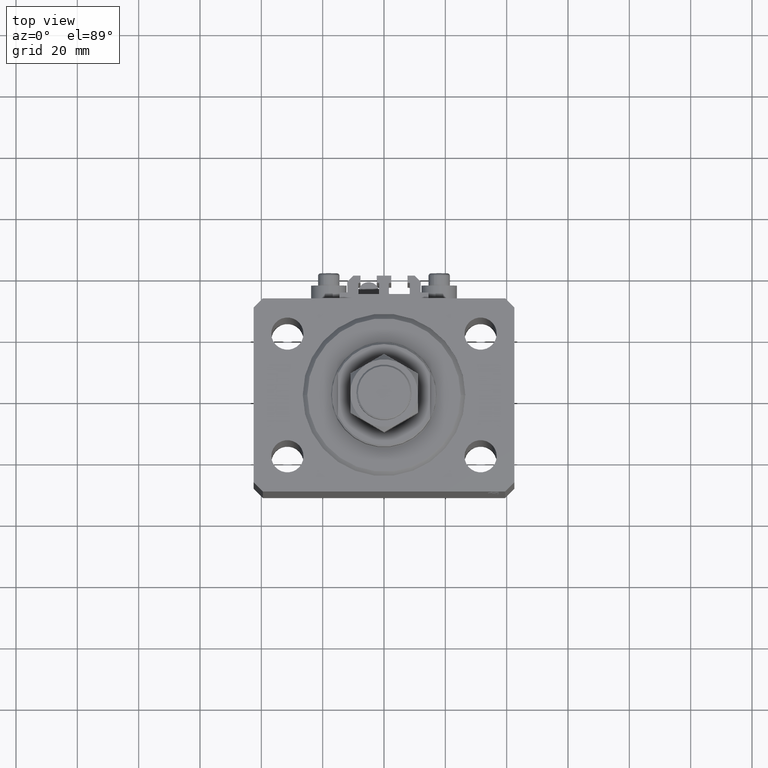
[diagram: clean part render]
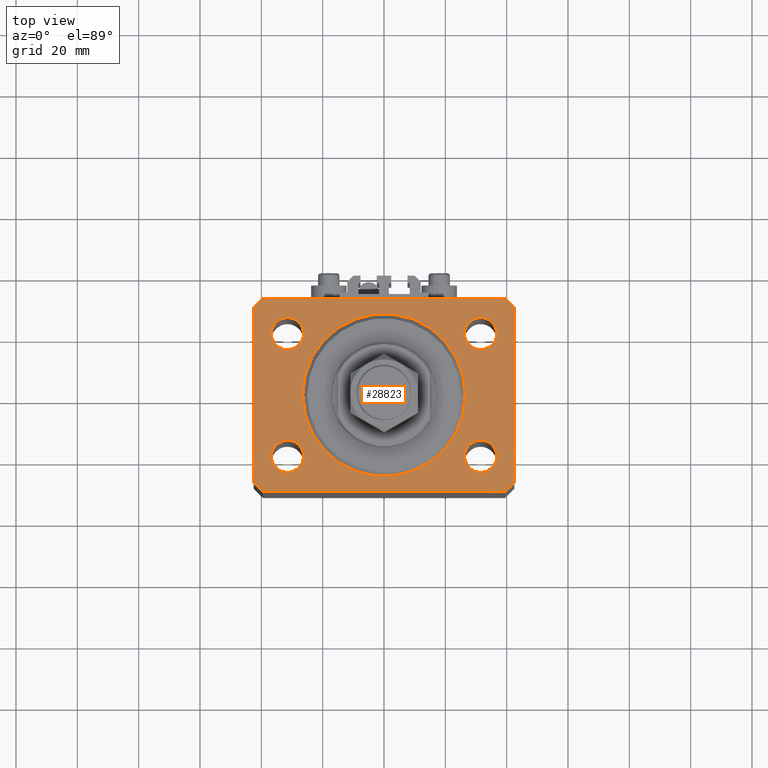
[diagram: same view with one face highlighted and labeled with its STEP entity id]
A machine part, top view. The second image highlights one B-rep face of the part: STEP entity #28823.
In plain terms, the highlighted planar face has unit normal (0, 0, 1).
Its self-contained STEP definition (entity closure, byte-faithful):
#25 = CARTESIAN_POINT ( 'NONE',  ( 31.50000000000000000, 19.99999999999999289, 0.000000000000000000 ) ) ;
#960 = CARTESIAN_POINT ( 'NONE',  ( -39.50000000000000711, -31.50000000000000000, 0.000000000000000000 ) ) ;
#987 = ORIENTED_EDGE ( 'NONE', *, *, #46165, .T. ) ;
#1067 = CIRCLE ( 'NONE', #46896, 5.250000000000000888 ) ;
#1368 = DIRECTION ( 'NONE',  ( -0.7071067811865471286, -0.7071067811865479058, 0.000000000000000000 ) ) ;
#1513 = CARTESIAN_POINT ( 'NONE',  ( 31.49999999999999289, -20.00000000000000355, 0.000000000000000000 ) ) ;
#1708 = DIRECTION ( 'NONE',  ( 1.000000000000000000, 0.000000000000000000, 0.000000000000000000 ) ) ;
#2351 = ORIENTED_EDGE ( 'NONE', *, *, #35962, .F. ) ;
#2626 = CARTESIAN_POINT ( 'NONE',  ( 0.000000000000000000, 0.000000000000000000, 0.000000000000000000 ) ) ;
#2925 = VERTEX_POINT ( 'NONE', #43152 ) ;
#3410 = EDGE_LOOP ( 'NONE', ( #47002, #3598 ) ) ;
#3598 = ORIENTED_EDGE ( 'NONE', *, *, #18454, .F. ) ;
#3734 = EDGE_CURVE ( 'NONE', #7246, #22058, #35396, .T. ) ;
#4209 = CARTESIAN_POINT ( 'NONE',  ( 36.75000000000000000, 19.99999999999999289, 0.000000000000000000 ) ) ;
#4217 = AXIS2_PLACEMENT_3D ( 'NONE', #37185, #18274, #40977 ) ;
#4802 = DIRECTION ( 'NONE',  ( 1.000000000000000000, 0.000000000000000000, 0.000000000000000000 ) ) ;
#5220 = DIRECTION ( 'NONE',  ( 1.000000000000000000, 0.000000000000000000, 0.000000000000000000 ) ) ;
#5742 = CARTESIAN_POINT ( 'NONE',  ( -26.25000000000000000, 19.99999999999999645, 0.000000000000000000 ) ) ;
#6212 = LINE ( 'NONE', #49489, #34469 ) ;
#6227 = CARTESIAN_POINT ( 'NONE',  ( 42.50000000000051870, 28.49999999999995381, 0.000000000000000000 ) ) ;
#6843 = CARTESIAN_POINT ( 'NONE',  ( -31.49999999999999289, -20.00000000000000355, 0.000000000000000000 ) ) ;
#6914 = EDGE_CURVE ( 'NONE', #41979, #39552, #6212, .T. ) ;
#7119 = CARTESIAN_POINT ( 'NONE',  ( 42.50000000000000711, -28.50000000000000355, 0.000000000000000000 ) ) ;
#7246 = VERTEX_POINT ( 'NONE', #21507 ) ;
#7361 = ORIENTED_EDGE ( 'NONE', *, *, #12273, .T. ) ;
#7697 = AXIS2_PLACEMENT_3D ( 'NONE', #39977, #8997, #5220 ) ;
#7873 = LINE ( 'NONE', #31053, #27251 ) ;
#7965 = CIRCLE ( 'NONE', #27265, 5.249999999999997335 ) ;
#7966 = ORIENTED_EDGE ( 'NONE', *, *, #6914, .T. ) ;
#8470 = CARTESIAN_POINT ( 'NONE',  ( 36.74999999999999289, -20.00000000000000355, 0.000000000000000000 ) ) ;
#8630 = CIRCLE ( 'NONE', #49636, 5.249999999999997335 ) ;
#8740 = LINE ( 'NONE', #960, #15760 ) ;
#8997 = DIRECTION ( 'NONE',  ( 0.000000000000000000, 0.000000000000000000, 1.000000000000000000 ) ) ;
#9135 = DIRECTION ( 'NONE',  ( 0.000000000000000000, 0.000000000000000000, 1.000000000000000000 ) ) ;
#9509 = EDGE_LOOP ( 'NONE', ( #13606, #27331 ) ) ;
#10104 = ORIENTED_EDGE ( 'NONE', *, *, #19153, .F. ) ;
#10195 = VERTEX_POINT ( 'NONE', #30297 ) ;
#10886 = DIRECTION ( 'NONE',  ( -1.000000000000000000, 0.000000000000000000, 0.000000000000000000 ) ) ;
#10900 = VECTOR ( 'NONE', #1368, 1000.000000000000000 ) ;
#11541 = DIRECTION ( 'NONE',  ( -0.7071067811865356934, 0.7071067811865594521, 0.000000000000000000 ) ) ;
#11793 = EDGE_CURVE ( 'NONE', #47294, #47916, #13333, .T. ) ;
#12032 = PLANE ( 'NONE',  #28967 ) ;
#12273 = EDGE_CURVE ( 'NONE', #33905, #41979, #38897, .T. ) ;
#12285 = FACE_BOUND ( 'NONE', #9509, .T. ) ;
#12451 = VERTEX_POINT ( 'NONE', #29964 ) ;
#12567 = DIRECTION ( 'NONE',  ( 1.000000000000000000, 0.000000000000000000, 0.000000000000000000 ) ) ;
#12923 = DIRECTION ( 'NONE',  ( 8.886653596232072440E-15, 1.000000000000000000, 0.000000000000000000 ) ) ;
#13333 = CIRCLE ( 'NONE', #14109, 5.249999999999997335 ) ;
#13606 = ORIENTED_EDGE ( 'NONE', *, *, #3734, .F. ) ;
#14109 = AXIS2_PLACEMENT_3D ( 'NONE', #18308, #21837, #45260 ) ;
#15051 = VERTEX_POINT ( 'NONE', #7119 ) ;
#15143 = ORIENTED_EDGE ( 'NONE', *, *, #19914, .T. ) ;
#15558 = FACE_BOUND ( 'NONE', #19094, .T. ) ;
#15760 = VECTOR ( 'NONE', #1708, 1000.000000000000000 ) ;
#16149 = CARTESIAN_POINT ( 'NONE',  ( -36.74999999999999289, -20.00000000000000355, 0.000000000000000000 ) ) ;
#16675 = VERTEX_POINT ( 'NONE', #31410 ) ;
#16865 = DIRECTION ( 'NONE',  ( 1.000000000000000000, 0.000000000000000000, 0.000000000000000000 ) ) ;
#17230 = DIRECTION ( 'NONE',  ( 0.000000000000000000, 0.000000000000000000, 1.000000000000000000 ) ) ;
#17864 = CARTESIAN_POINT ( 'NONE',  ( -39.50000000000000711, -31.50000000000000000, 0.000000000000000000 ) ) ;
#18274 = DIRECTION ( 'NONE',  ( 0.000000000000000000, 0.000000000000000000, 1.000000000000000000 ) ) ;
#18308 = CARTESIAN_POINT ( 'NONE',  ( 31.50000000000000000, 19.99999999999999289, 0.000000000000000000 ) ) ;
#18385 = CIRCLE ( 'NONE', #22396, 5.250000000000000888 ) ;
#18454 = EDGE_CURVE ( 'NONE', #27538, #10195, #31140, .T. ) ;
#19094 = EDGE_LOOP ( 'NONE', ( #39580, #2351 ) ) ;
#19153 = EDGE_CURVE ( 'NONE', #47916, #47294, #8630, .T. ) ;
#19228 = CARTESIAN_POINT ( 'NONE',  ( -42.50000000000000000, -28.50000000000000000, 0.000000000000000000 ) ) ;
#19345 = FACE_BOUND ( 'NONE', #28334, .T. ) ;
#19525 = DIRECTION ( 'NONE',  ( 0.000000000000000000, -1.000000000000000000, 0.000000000000000000 ) ) ;
#19914 = EDGE_CURVE ( 'NONE', #16675, #15051, #20468, .T. ) ;
#20352 = FACE_OUTER_BOUND ( 'NONE', #45724, .T. ) ;
#20468 = LINE ( 'NONE', #36578, #44852 ) ;
#20499 = VERTEX_POINT ( 'NONE', #6227 ) ;
#21507 = CARTESIAN_POINT ( 'NONE',  ( -26.24999999999999289, -20.00000000000000355, 0.000000000000000000 ) ) ;
#21817 = EDGE_CURVE ( 'NONE', #49766, #2925, #18385, .T. ) ;
#21837 = DIRECTION ( 'NONE',  ( 0.000000000000000000, 0.000000000000000000, 1.000000000000000000 ) ) ;
#21870 = CIRCLE ( 'NONE', #4217, 26.50000000000000355 ) ;
#22058 = VERTEX_POINT ( 'NONE', #16149 ) ;
#22195 = DIRECTION ( 'NONE',  ( 1.000000000000000000, 0.000000000000000000, 0.000000000000000000 ) ) ;
#22396 = AXIS2_PLACEMENT_3D ( 'NONE', #28267, #9135, #38057 ) ;
#22741 = VERTEX_POINT ( 'NONE', #8470 ) ;
#22907 = CARTESIAN_POINT ( 'NONE',  ( -26.50000000000000355, 3.245314017740485765E-15, 0.000000000000000000 ) ) ;
#22969 = CIRCLE ( 'NONE', #7697, 5.249999999999997335 ) ;
#23109 = DIRECTION ( 'NONE',  ( 0.000000000000000000, 0.000000000000000000, 1.000000000000000000 ) ) ;
#23431 = DIRECTION ( 'NONE',  ( 0.000000000000000000, 0.000000000000000000, 1.000000000000000000 ) ) ;
#23627 = CARTESIAN_POINT ( 'NONE',  ( -42.50000000000000000, -28.50000000000000000, 0.000000000000000000 ) ) ;
#23876 = CARTESIAN_POINT ( 'NONE',  ( -31.49999999999999289, -20.00000000000000355, 0.000000000000000000 ) ) ;
#25061 = ORIENTED_EDGE ( 'NONE', *, *, #29529, .T. ) ;
#25846 = ORIENTED_EDGE ( 'NONE', *, *, #11793, .F. ) ;
#26339 = VECTOR ( 'NONE', #38118, 1000.000000000000000 ) ;
#26455 = CARTESIAN_POINT ( 'NONE',  ( 26.25000000000000355, 19.99999999999999289, 0.000000000000000000 ) ) ;
#26505 = EDGE_CURVE ( 'NONE', #22741, #31502, #7965, .T. ) ;
#26549 = AXIS2_PLACEMENT_3D ( 'NONE', #23876, #36704, #36219 ) ;
#26557 = ORIENTED_EDGE ( 'NONE', *, *, #37633, .F. ) ;
#27092 = AXIS2_PLACEMENT_3D ( 'NONE', #2626, #17230, #40909 ) ;
#27251 = VECTOR ( 'NONE', #10886, 1000.000000000000000 ) ;
#27265 = AXIS2_PLACEMENT_3D ( 'NONE', #1513, #39558, #16865 ) ;
#27331 = ORIENTED_EDGE ( 'NONE', *, *, #48651, .F. ) ;
#27538 = VERTEX_POINT ( 'NONE', #22907 ) ;
#27925 = CARTESIAN_POINT ( 'NONE',  ( -31.50000000000000000, 19.99999999999999645, 0.000000000000000000 ) ) ;
#28021 = LINE ( 'NONE', #43408, #34577 ) ;
#28267 = CARTESIAN_POINT ( 'NONE',  ( -31.50000000000000000, 19.99999999999999645, 0.000000000000000000 ) ) ;
#28334 = EDGE_LOOP ( 'NONE', ( #31193, #26557 ) ) ;
#28823 = ADVANCED_FACE ( 'NONE', ( #34713, #12285, #19345, #43267, #15558, #20352 ), #12032, .T. ) ;
#28967 = AXIS2_PLACEMENT_3D ( 'NONE', #39253, #23109, #39513 ) ;
#29529 = EDGE_CURVE ( 'NONE', #15051, #20499, #28021, .T. ) ;
#29570 = LINE ( 'NONE', #19228, #26339 ) ;
#29862 = ORIENTED_EDGE ( 'NONE', *, *, #42539, .T. ) ;
#29947 = EDGE_CURVE ( 'NONE', #20499, #12451, #38507, .T. ) ;
#29964 = CARTESIAN_POINT ( 'NONE',  ( 39.50000000000056843, 31.50000000000000000, 0.000000000000000000 ) ) ;
#30142 = CARTESIAN_POINT ( 'NONE',  ( 26.24999999999999645, -20.00000000000000355, 0.000000000000000000 ) ) ;
#30297 = CARTESIAN_POINT ( 'NONE',  ( 26.50000000000000355, 0.000000000000000000, 0.000000000000000000 ) ) ;
#31053 = CARTESIAN_POINT ( 'NONE',  ( 39.50000000000056843, 31.50000000000000000, 0.000000000000000000 ) ) ;
#31140 = CIRCLE ( 'NONE', #27092, 26.50000000000000355 ) ;
#31193 = ORIENTED_EDGE ( 'NONE', *, *, #26505, .F. ) ;
#31410 = CARTESIAN_POINT ( 'NONE',  ( 39.50000000000000711, -31.50000000000000000, 0.000000000000000000 ) ) ;
#31418 = CIRCLE ( 'NONE', #26549, 5.250000000000000888 ) ;
#31502 = VERTEX_POINT ( 'NONE', #30142 ) ;
#31891 = ORIENTED_EDGE ( 'NONE', *, *, #29947, .T. ) ;
#32230 = VECTOR ( 'NONE', #11541, 1000.000000000000114 ) ;
#32820 = DIRECTION ( 'NONE',  ( 0.000000000000000000, 0.000000000000000000, 1.000000000000000000 ) ) ;
#33797 = AXIS2_PLACEMENT_3D ( 'NONE', #6843, #32820, #22195 ) ;
#33905 = VERTEX_POINT ( 'NONE', #49477 ) ;
#34469 = VECTOR ( 'NONE', #19525, 1000.000000000000000 ) ;
#34478 = CARTESIAN_POINT ( 'NONE',  ( 42.50000000000051870, 28.49999999999995381, 0.000000000000000000 ) ) ;
#34556 = EDGE_CURVE ( 'NONE', #10195, #27538, #21870, .T. ) ;
#34577 = VECTOR ( 'NONE', #12923, 1000.000000000000000 ) ;
#34713 = FACE_BOUND ( 'NONE', #3410, .T. ) ;
#35396 = CIRCLE ( 'NONE', #33797, 5.250000000000000888 ) ;
#35870 = CARTESIAN_POINT ( 'NONE',  ( -39.50000000000000711, 31.50000000000000000, 0.000000000000000000 ) ) ;
#35962 = EDGE_CURVE ( 'NONE', #2925, #49766, #1067, .T. ) ;
#36219 = DIRECTION ( 'NONE',  ( 1.000000000000000000, 0.000000000000000000, 0.000000000000000000 ) ) ;
#36578 = CARTESIAN_POINT ( 'NONE',  ( 39.50000000000000711, -31.50000000000000000, 0.000000000000000000 ) ) ;
#36704 = DIRECTION ( 'NONE',  ( 0.000000000000000000, 0.000000000000000000, 1.000000000000000000 ) ) ;
#37185 = CARTESIAN_POINT ( 'NONE',  ( 0.000000000000000000, 0.000000000000000000, 0.000000000000000000 ) ) ;
#37561 = CARTESIAN_POINT ( 'NONE',  ( -42.50000000000000000, 28.50000000000000000, 0.000000000000000000 ) ) ;
#37633 = EDGE_CURVE ( 'NONE', #31502, #22741, #22969, .T. ) ;
#37699 = EDGE_CURVE ( 'NONE', #46728, #16675, #8740, .T. ) ;
#38057 = DIRECTION ( 'NONE',  ( 1.000000000000000000, 0.000000000000000000, 0.000000000000000000 ) ) ;
#38118 = DIRECTION ( 'NONE',  ( 0.7071067811865471286, -0.7071067811865479058, 0.000000000000000000 ) ) ;
#38507 = LINE ( 'NONE', #34478, #32230 ) ;
#38897 = LINE ( 'NONE', #35870, #10900 ) ;
#39253 = CARTESIAN_POINT ( 'NONE',  ( 0.000000000000000000, 0.000000000000000000, 0.000000000000000000 ) ) ;
#39513 = DIRECTION ( 'NONE',  ( 1.000000000000000000, 0.000000000000000000, -0.000000000000000000 ) ) ;
#39552 = VERTEX_POINT ( 'NONE', #23627 ) ;
#39558 = DIRECTION ( 'NONE',  ( 0.000000000000000000, 0.000000000000000000, 1.000000000000000000 ) ) ;
#39580 = ORIENTED_EDGE ( 'NONE', *, *, #21817, .F. ) ;
#39977 = CARTESIAN_POINT ( 'NONE',  ( 31.49999999999999289, -20.00000000000000355, 0.000000000000000000 ) ) ;
#40909 = DIRECTION ( 'NONE',  ( 1.000000000000000000, 0.000000000000000000, 0.000000000000000000 ) ) ;
#40977 = DIRECTION ( 'NONE',  ( 1.000000000000000000, 0.000000000000000000, 0.000000000000000000 ) ) ;
#41979 = VERTEX_POINT ( 'NONE', #37561 ) ;
#42539 = EDGE_CURVE ( 'NONE', #39552, #46728, #29570, .T. ) ;
#42737 = EDGE_LOOP ( 'NONE', ( #10104, #25846 ) ) ;
#43152 = CARTESIAN_POINT ( 'NONE',  ( -36.75000000000000000, 19.99999999999999645, 0.000000000000000000 ) ) ;
#43267 = FACE_BOUND ( 'NONE', #42737, .T. ) ;
#43408 = CARTESIAN_POINT ( 'NONE',  ( 42.50000000000000711, -28.50000000000000355, 0.000000000000000000 ) ) ;
#44046 = DIRECTION ( 'NONE',  ( 0.000000000000000000, 0.000000000000000000, 1.000000000000000000 ) ) ;
#44761 = ORIENTED_EDGE ( 'NONE', *, *, #37699, .T. ) ;
#44852 = VECTOR ( 'NONE', #44857, 1000.000000000000000 ) ;
#44857 = DIRECTION ( 'NONE',  ( 0.7071067811865483499, 0.7071067811865466846, 0.000000000000000000 ) ) ;
#45260 = DIRECTION ( 'NONE',  ( 1.000000000000000000, 0.000000000000000000, 0.000000000000000000 ) ) ;
#45724 = EDGE_LOOP ( 'NONE', ( #987, #7361, #7966, #29862, #44761, #15143, #25061, #31891 ) ) ;
#46165 = EDGE_CURVE ( 'NONE', #12451, #33905, #7873, .T. ) ;
#46728 = VERTEX_POINT ( 'NONE', #17864 ) ;
#46896 = AXIS2_PLACEMENT_3D ( 'NONE', #27925, #44046, #12567 ) ;
#47002 = ORIENTED_EDGE ( 'NONE', *, *, #34556, .F. ) ;
#47294 = VERTEX_POINT ( 'NONE', #26455 ) ;
#47916 = VERTEX_POINT ( 'NONE', #4209 ) ;
#48651 = EDGE_CURVE ( 'NONE', #22058, #7246, #31418, .T. ) ;
#49477 = CARTESIAN_POINT ( 'NONE',  ( -39.50000000000000711, 31.50000000000000000, 0.000000000000000000 ) ) ;
#49489 = CARTESIAN_POINT ( 'NONE',  ( -42.50000000000000000, 28.50000000000000000, 0.000000000000000000 ) ) ;
#49636 = AXIS2_PLACEMENT_3D ( 'NONE', #25, #23431, #4802 ) ;
#49766 = VERTEX_POINT ( 'NONE', #5742 ) ;